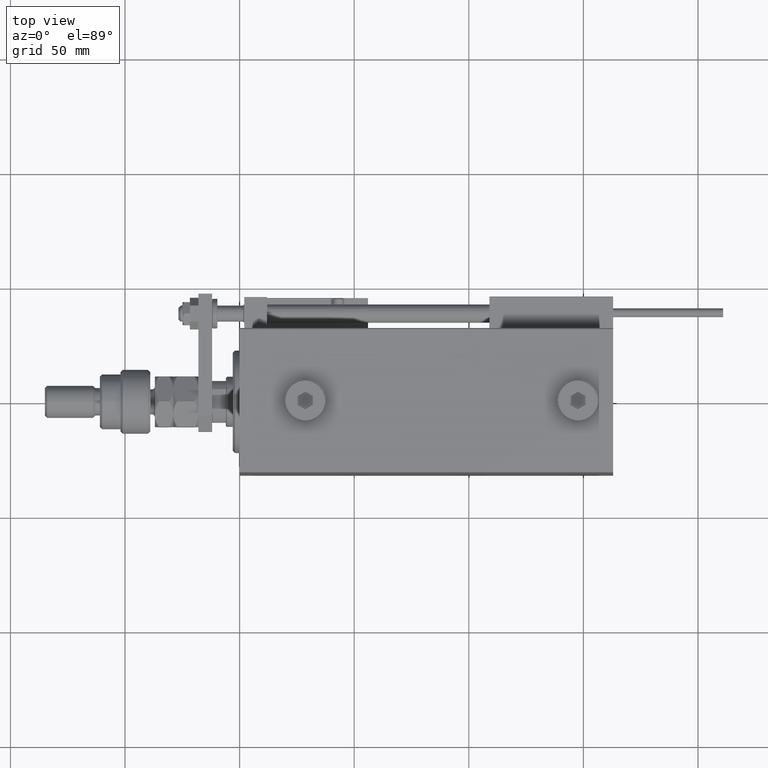
[diagram: clean part render]
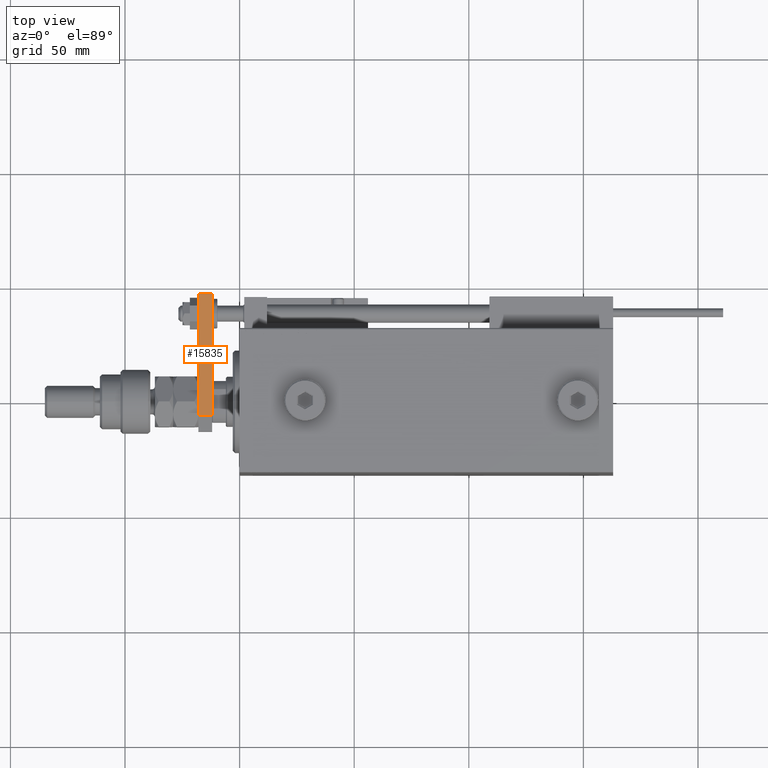
[diagram: same view with one face highlighted and labeled with its STEP entity id]
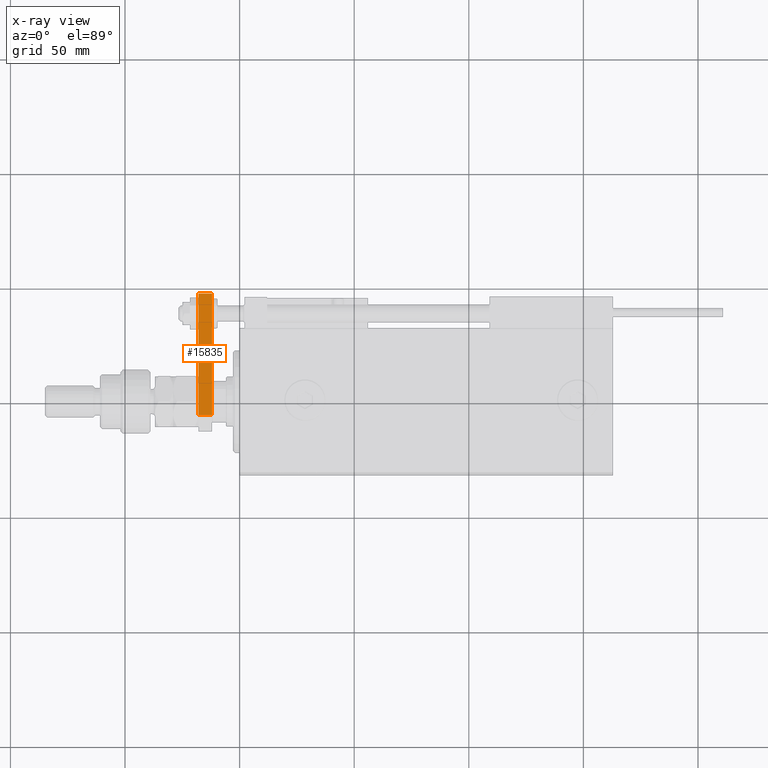
[diagram: x-ray of the same camera — body ghosted, the highlighted face saturated]
A machine part, top view. The second image highlights one B-rep face of the part: STEP entity #15835.
The next image is the same camera in x-ray: the body ghosted, the highlighted face saturated — about 0% of this face is hidden behind the body in this view.
In plain terms, the highlighted planar face has unit normal (-0, -0, -1).
Its self-contained STEP definition (entity closure, byte-faithful):
#622 = DIRECTION ( 'NONE',  ( 0.000000000000000000, 0.000000000000000000, 1.000000000000000000 ) ) ;
#2594 = CARTESIAN_POINT ( 'NONE',  ( 12.50000000000000355, 4.814824860968089633E-32, 0.000000000000000000 ) ) ;
#3987 = CARTESIAN_POINT ( 'NONE',  ( 12.50000000000000355, 4.814824860968089633E-32, 6.000000000000000000 ) ) ;
#4512 = VERTEX_POINT ( 'NONE', #46829 ) ;
#6094 = ORIENTED_EDGE ( 'NONE', *, *, #17931, .T. ) ;
#13850 = VECTOR ( 'NONE', #14941, 1000.000000000000000 ) ;
#14737 = EDGE_LOOP ( 'NONE', ( #35340, #24124, #6094, #25716 ) ) ;
#14759 = DIRECTION ( 'NONE',  ( 0.000000000000000000, 0.000000000000000000, -1.000000000000000000 ) ) ;
#14941 = DIRECTION ( 'NONE',  ( 0.000000000000000000, 1.000000000000000000, 0.000000000000000000 ) ) ;
#15835 = ADVANCED_FACE ( 'NONE', ( #37862 ), #16884, .F. ) ;
#16884 = PLANE ( 'NONE',  #30693 ) ;
#17931 = EDGE_CURVE ( 'NONE', #38438, #18250, #27518, .T. ) ;
#18250 = VERTEX_POINT ( 'NONE', #48475 ) ;
#19681 = VECTOR ( 'NONE', #14759, 1000.000000000000000 ) ;
#21065 = LINE ( 'NONE', #3987, #50859 ) ;
#21338 = DIRECTION ( 'NONE',  ( -1.000000000000000000, 0.000000000000000000, 0.000000000000000000 ) ) ;
#24124 = ORIENTED_EDGE ( 'NONE', *, *, #33532, .T. ) ;
#24994 = CARTESIAN_POINT ( 'NONE',  ( 12.50000000000000355, 60.00000000000000000, 6.000000000000000000 ) ) ;
#25716 = ORIENTED_EDGE ( 'NONE', *, *, #37943, .F. ) ;
#26081 = DIRECTION ( 'NONE',  ( 0.000000000000000000, 1.000000000000000000, 0.000000000000000000 ) ) ;
#27518 = LINE ( 'NONE', #2594, #13850 ) ;
#29350 = VERTEX_POINT ( 'NONE', #44824 ) ;
#30693 = AXIS2_PLACEMENT_3D ( 'NONE', #38978, #21338, #622 ) ;
#31383 = VECTOR ( 'NONE', #42081, 1000.000000000000000 ) ;
#32909 = CARTESIAN_POINT ( 'NONE',  ( 12.50000000000000355, 7.000000000000006217, 6.000000000000000000 ) ) ;
#33532 = EDGE_CURVE ( 'NONE', #4512, #38438, #36279, .T. ) ;
#35340 = ORIENTED_EDGE ( 'NONE', *, *, #43628, .F. ) ;
#35748 = CARTESIAN_POINT ( 'NONE',  ( 12.50000000000000355, 7.000000000000006217, 0.000000000000000000 ) ) ;
#36279 = LINE ( 'NONE', #32909, #19681 ) ;
#37862 = FACE_OUTER_BOUND ( 'NONE', #14737, .T. ) ;
#37943 = EDGE_CURVE ( 'NONE', #29350, #18250, #38166, .T. ) ;
#38166 = LINE ( 'NONE', #24994, #31383 ) ;
#38438 = VERTEX_POINT ( 'NONE', #35748 ) ;
#38978 = CARTESIAN_POINT ( 'NONE',  ( 12.50000000000000355, 4.814824860968089633E-32, 6.000000000000000000 ) ) ;
#42081 = DIRECTION ( 'NONE',  ( -0.000000000000000000, -0.000000000000000000, -1.000000000000000000 ) ) ;
#43628 = EDGE_CURVE ( 'NONE', #4512, #29350, #21065, .T. ) ;
#44824 = CARTESIAN_POINT ( 'NONE',  ( 12.50000000000000355, 60.00000000000000000, 6.000000000000000000 ) ) ;
#46829 = CARTESIAN_POINT ( 'NONE',  ( 12.50000000000000355, 7.000000000000006217, 6.000000000000000000 ) ) ;
#48475 = CARTESIAN_POINT ( 'NONE',  ( 12.50000000000000355, 60.00000000000000000, 0.000000000000000000 ) ) ;
#50859 = VECTOR ( 'NONE', #26081, 1000.000000000000000 ) ;